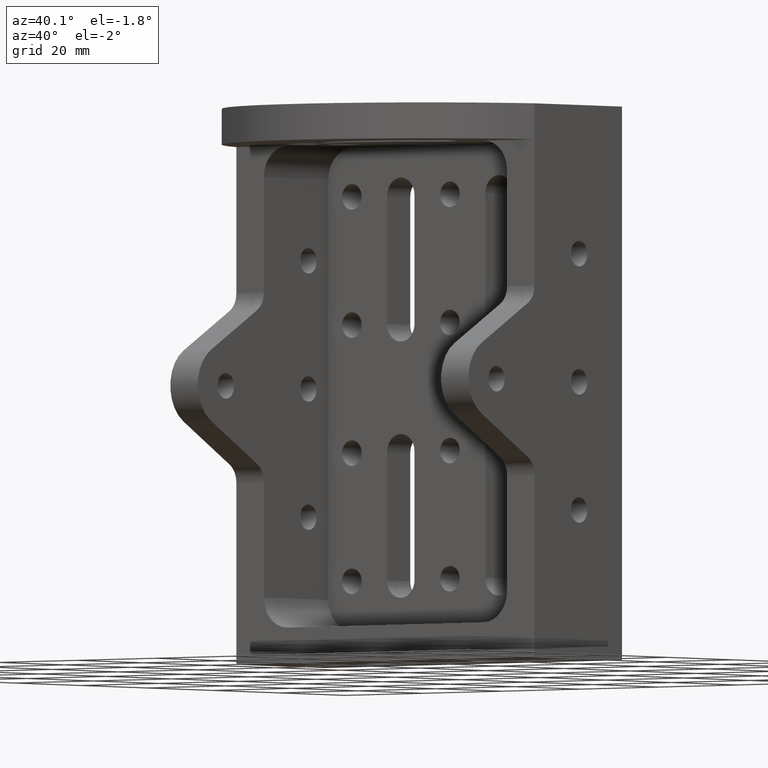
[diagram: clean part render]
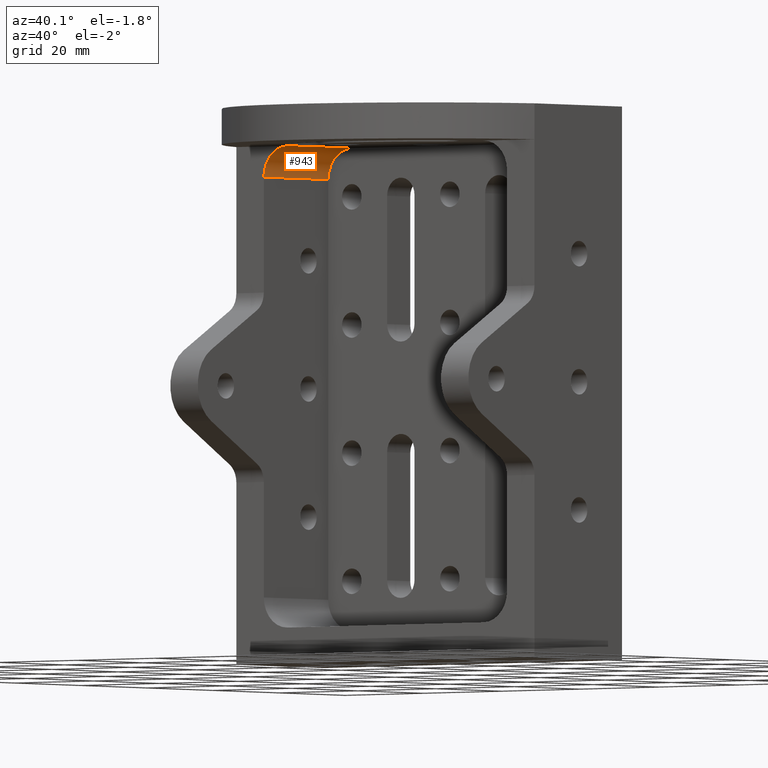
[diagram: same view with one face highlighted and labeled with its STEP entity id]
A machine part, auxiliary view. The second image highlights one B-rep face of the part: STEP entity #943.
In plain terms, the highlighted cylindrical surface (edge-blend (fillet) strip) has radius 6 mm, axis along (0, 1, -0).
Its self-contained STEP definition (entity closure, byte-faithful):
#42 = CARTESIAN_POINT ( 'NONE',  ( -30.99999999999993200, -26.50332882212207200, 40.99999999999943200 ) ) ;
#90 = VERTEX_POINT ( 'NONE', #1459 ) ;
#157 = VECTOR ( 'NONE', #1469, 1000.000000000000000 ) ;
#204 = VERTEX_POINT ( 'NONE', #2659 ) ;
#247 = EDGE_CURVE ( 'NONE', #418, #90, #3568, .T. ) ;
#314 = DIRECTION ( 'NONE',  ( 3.367670801987544500E-015, 1.000000000000000000, -0.0000000000000000000 ) ) ;
#418 = VERTEX_POINT ( 'NONE', #1568 ) ;
#552 = CARTESIAN_POINT ( 'NONE',  ( -24.99999999999986900, -6.999999999999436900, 40.99999999999943200 ) ) ;
#569 = CIRCLE ( 'NONE', #843, 5.999999999999998200 ) ;
#582 = DIRECTION ( 'NONE',  ( -1.000000000000000000, 3.469446951953615400E-015, 0.0000000000000000000 ) ) ;
#843 = AXIS2_PLACEMENT_3D ( 'NONE', #2928, #3169, #2012 ) ;
#877 = CARTESIAN_POINT ( 'NONE',  ( -24.99999999999986900, -6.999999999999458200, 46.99999999999943200 ) ) ;
#943 = ADVANCED_FACE ( 'NONE', ( #3633 ), #2069, .F. ) ;
#1125 = DIRECTION ( 'NONE',  ( -0.0000000000000000000, -1.000000000000000000, -0.0000000000000000000 ) ) ;
#1270 = ORIENTED_EDGE ( 'NONE', *, *, #247, .F. ) ;
#1426 = CIRCLE ( 'NONE', #2657, 5.999999999999998200 ) ;
#1441 = DIRECTION ( 'NONE',  ( 3.367670801987544500E-015, 1.000000000000000000, -0.0000000000000000000 ) ) ;
#1459 = CARTESIAN_POINT ( 'NONE',  ( -31.00000000000000000, -26.50332882212206800, 40.99999999999943200 ) ) ;
#1469 = DIRECTION ( 'NONE',  ( -3.367670801987544500E-015, -1.000000000000000000, 0.0000000000000000000 ) ) ;
#1568 = CARTESIAN_POINT ( 'NONE',  ( -31.00000000000000000, -6.999999999999434200, 40.99999999999943200 ) ) ;
#1670 = DIRECTION ( 'NONE',  ( 0.0000000000000000000, 0.0000000000000000000, 1.000000000000000000 ) ) ;
#1744 = EDGE_CURVE ( 'NONE', #3468, #418, #1426, .T. ) ;
#1862 = EDGE_CURVE ( 'NONE', #204, #3468, #2776, .T. ) ;
#1869 = EDGE_CURVE ( 'NONE', #90, #204, #569, .T. ) ;
#2012 = DIRECTION ( 'NONE',  ( 0.0000000000000000000, 0.0000000000000000000, 1.000000000000000000 ) ) ;
#2069 = CYLINDRICAL_SURFACE ( 'NONE', #2330, 5.999999999999998200 ) ;
#2330 = AXIS2_PLACEMENT_3D ( 'NONE', #2880, #1441, #582 ) ;
#2519 = CARTESIAN_POINT ( 'NONE',  ( -24.99999999999986900, -6.999999999999434200, 46.99999999999946000 ) ) ;
#2597 = ORIENTED_EDGE ( 'NONE', *, *, #1744, .F. ) ;
#2657 = AXIS2_PLACEMENT_3D ( 'NONE', #552, #1125, #1670 ) ;
#2659 = CARTESIAN_POINT ( 'NONE',  ( -24.99999999999993600, -26.50332882212207200, 46.99999999999943200 ) ) ;
#2776 = LINE ( 'NONE', #877, #3173 ) ;
#2880 = CARTESIAN_POINT ( 'NONE',  ( -25.00000000000000000, -46.49999999999999300, 40.99999999999943200 ) ) ;
#2924 = EDGE_LOOP ( 'NONE', ( #2597, #3504, #3017, #1270 ) ) ;
#2928 = CARTESIAN_POINT ( 'NONE',  ( -24.99999999999993600, -26.50332882212206800, 40.99999999999943200 ) ) ;
#3017 = ORIENTED_EDGE ( 'NONE', *, *, #1869, .F. ) ;
#3169 = DIRECTION ( 'NONE',  ( 0.0000000000000000000, 1.000000000000000000, 1.216496126210969100E-016 ) ) ;
#3173 = VECTOR ( 'NONE', #314, 1000.000000000000000 ) ;
#3468 = VERTEX_POINT ( 'NONE', #2519 ) ;
#3504 = ORIENTED_EDGE ( 'NONE', *, *, #1862, .F. ) ;
#3568 = LINE ( 'NONE', #42, #157 ) ;
#3633 = FACE_OUTER_BOUND ( 'NONE', #2924, .T. ) ;